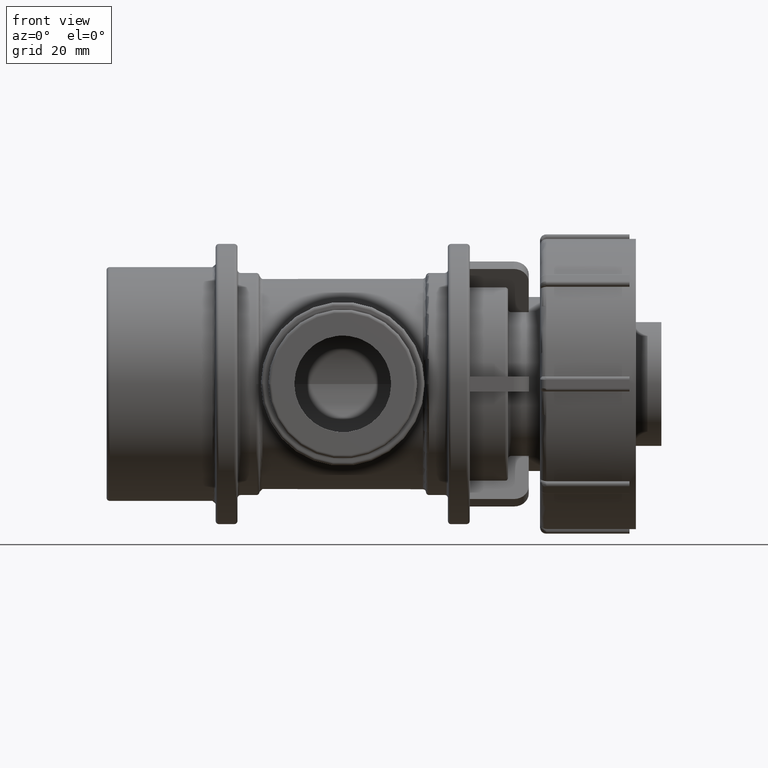
[diagram: clean part render]
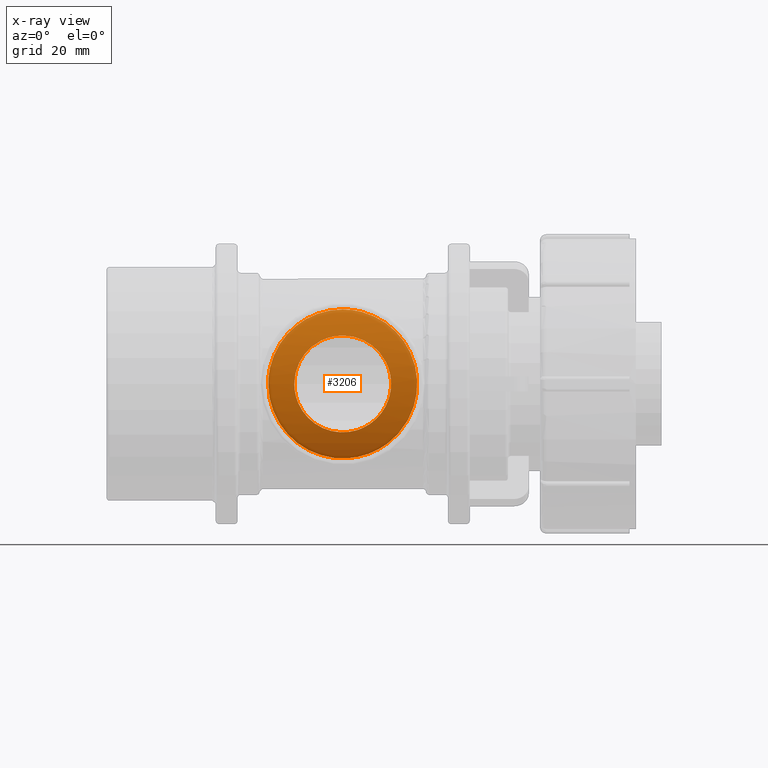
[diagram: x-ray — body ghosted, one internal face saturated and labeled with its STEP entity id]
A machine part, front view, then the same camera in x-ray: the body is ghosted and one INTERNAL B-rep face — a face not visible from any outside direction — is saturated and labeled: STEP entity #3206.
In plain terms, the highlighted cylindrical surface (partial cylindrical patch) has radius 33.75 mm, axis along (1, 0, 0).
Its self-contained STEP definition (entity closure, byte-faithful):
#787=FACE_BOUND('',#1261,.T.);
#999=FACE_OUTER_BOUND('',#1260,.T.);
#1260=EDGE_LOOP('',(#2914));
#1261=EDGE_LOOP('',(#2915));
#1332=B_SPLINE_CURVE_WITH_KNOTS('',3,(#6126,#6127,#6128,#6129,#6130,#6131,
#6132,#6133,#6134,#6135,#6136,#6137,#6138,#6139,#6140,#6141,#6142,#6143,
#6144,#6145,#6146,#6147,#6148,#6149,#6150,#6151,#6152,#6153,#6154,#6155,
#6156,#6157,#6158,#6159,#6160,#6161,#6162,#6163,#6164,#6165,#6166,#6167,
#6168,#6169,#6170,#6171,#6172,#6173,#6174,#6175,#6176,#6177,#6178,#6179,
#6180,#6181,#6182,#6183,#6184,#6185,#6186,#6187,#6188,#6189,#6190,#6191),
 .UNSPECIFIED.,.T.,.F.,(4,2,2,2,2,2,2,2,2,2,2,2,2,2,2,2,2,2,2,2,2,2,2,2,
2,2,2,2,2,2,2,2,4),(0.,0.475938500100274,0.951877000200548,1.42781550030082,
1.9037540004011,2.37245335410523,2.84115270780936,3.30985206151349,3.77855141521763,
4.24725076892176,4.71595012262589,5.18464947633002,5.65334883003416,6.12928733013443,
6.6052258302347,7.08116433033498,7.55710283043525,8.03304133053553,8.5089798306358,
8.98491833073608,9.46085683083635,9.92955618454048,10.3982555382446,10.8669548919487,
11.3356542456529,11.804353599357,12.2730529530611,12.7417523067653,13.2104516604694,
13.6863901605697,14.16232866067,14.6382671607702,15.1142056608705),
 .UNSPECIFIED.);
#1333=B_SPLINE_CURVE_WITH_KNOTS('',3,(#6193,#6194,#6195,#6196,#6197,#6198,
#6199,#6200,#6201,#6202,#6203,#6204,#6205,#6206,#6207,#6208,#6209,#6210,
#6211,#6212,#6213,#6214,#6215,#6216,#6217,#6218,#6219,#6220,#6221,#6222,
#6223,#6224,#6225,#6226,#6227,#6228,#6229,#6230,#6231,#6232,#6233,#6234,
#6235,#6236,#6237,#6238,#6239,#6240,#6241,#6242),.UNSPECIFIED.,.T.,.F.,
(4,2,2,2,2,2,2,2,2,2,2,2,2,2,2,2,2,2,2,2,2,2,2,2,4),(0.,0.297846823282371,
0.595693646564742,1.19138729312948,1.78596310865965,2.08325101642474,2.38053892418982,
2.6778268319549,2.97511473971999,3.56969055525015,4.16538420181489,4.46323102509727,
4.76107784837964,5.05892467166201,5.35677149494438,5.95246514150912,6.54704095703929,
6.84432886480437,7.14161677256945,7.43890468033454,7.73619258809962,8.33076840362978,
8.92646205019453,9.2243088734769,9.52215569675927),.UNSPECIFIED.);
#1617=VERTEX_POINT('',#6125);
#1618=VERTEX_POINT('',#6192);
#2053=EDGE_CURVE('',#1617,#1617,#1332,.T.);
#2054=EDGE_CURVE('',#1618,#1618,#1333,.T.);
#2914=ORIENTED_EDGE('',*,*,#2053,.F.);
#2915=ORIENTED_EDGE('',*,*,#2054,.F.);
#3000=CYLINDRICAL_SURFACE('',#3588,33.75);
#3206=ADVANCED_FACE('',(#999,#787),#3000,.F.);
#3588=AXIS2_PLACEMENT_3D('',#6124,#4516,#4517);
#4516=DIRECTION('center_axis',(1.,0.,0.));
#4517=DIRECTION('ref_axis',(0.,0.,-1.));
#6124=CARTESIAN_POINT('Origin',(-75.75,0.,0.));
#6125=CARTESIAN_POINT('',(-6.66133814775094E-15,-23.8281513708051,23.9015));
#6126=CARTESIAN_POINT('Ctrl Pts',(-6.66133814775094E-15,-23.8281513708051,
23.9015));
#6127=CARTESIAN_POINT('Ctrl Pts',(-1.58646166700092,-23.8281513708051,23.9015));
#6128=CARTESIAN_POINT('Ctrl Pts',(-3.18966811203021,-23.9915227784884,23.7416242770434));
#6129=CARTESIAN_POINT('Ctrl Pts',(-6.32382204970287,-24.6050788111022,23.1051505739813));
#6130=CARTESIAN_POINT('Ctrl Pts',(-7.85529753779996,-25.0529757857666,22.628949522809));
#6131=CARTESIAN_POINT('Ctrl Pts',(-10.7640113214621,-26.1114831031948,21.3988615357246));
#6132=CARTESIAN_POINT('Ctrl Pts',(-12.1443013353026,-26.7213641021603,20.6438917842701));
#6133=CARTESIAN_POINT('Ctrl Pts',(-14.6936291218159,-27.9723073984907,18.9143222524994));
#6134=CARTESIAN_POINT('Ctrl Pts',(-15.862633962588,-28.6127025323026,17.9391914984726));
#6135=CARTESIAN_POINT('Ctrl Pts',(-17.9233990126796,-29.8049236543074,15.8784264483809));
#6136=CARTESIAN_POINT('Ctrl Pts',(-18.8953624672475,-30.4034530534525,14.7181619812866));
#6137=CARTESIAN_POINT('Ctrl Pts',(-20.6297815738476,-31.5106826707044,12.1684480231502));
#6138=CARTESIAN_POINT('Ctrl Pts',(-21.3923254062906,-32.018821267961,10.7788146635617));
#6139=CARTESIAN_POINT('Ctrl Pts',(-22.632538771198,-32.8603884748086,7.84746094788918));
#6140=CARTESIAN_POINT('Ctrl Pts',(-23.1112390838057,-33.1942611964862,6.30252905700655));
#6141=CARTESIAN_POINT('Ctrl Pts',(-23.7458541253879,-33.6391913180671,3.16000892098551));
#6142=CARTESIAN_POINT('Ctrl Pts',(-23.9015,-33.75,1.56233117901377));
#6143=CARTESIAN_POINT('Ctrl Pts',(-23.9015,-33.75,-1.56233117901377));
#6144=CARTESIAN_POINT('Ctrl Pts',(-23.7458541253879,-33.6391913180671,-3.16000892098551));
#6145=CARTESIAN_POINT('Ctrl Pts',(-23.1112390838057,-33.1942611964862,-6.30252905700655));
#6146=CARTESIAN_POINT('Ctrl Pts',(-22.632538771198,-32.8603884748086,-7.84746094788918));
#6147=CARTESIAN_POINT('Ctrl Pts',(-21.3923254062906,-32.018821267961,-10.7788146635617));
#6148=CARTESIAN_POINT('Ctrl Pts',(-20.6297815738476,-31.5106826707044,-12.1684480231502));
#6149=CARTESIAN_POINT('Ctrl Pts',(-18.8953624672475,-30.4034530534525,-14.7181619812866));
#6150=CARTESIAN_POINT('Ctrl Pts',(-17.9233990126796,-29.8049236543074,-15.8784264483809));
#6151=CARTESIAN_POINT('Ctrl Pts',(-15.862633962588,-28.6127025323026,-17.9391914984726));
#6152=CARTESIAN_POINT('Ctrl Pts',(-14.6936291218159,-27.9723073984907,-18.9143222524994));
#6153=CARTESIAN_POINT('Ctrl Pts',(-12.1443013353026,-26.7213641021603,-20.6438917842701));
#6154=CARTESIAN_POINT('Ctrl Pts',(-10.764011321462,-26.1114831031948,-21.3988615357246));
#6155=CARTESIAN_POINT('Ctrl Pts',(-7.85529753779996,-25.0529757857666,-22.628949522809));
#6156=CARTESIAN_POINT('Ctrl Pts',(-6.32382204970287,-24.6050788111022,-23.1051505739813));
#6157=CARTESIAN_POINT('Ctrl Pts',(-3.18966811203021,-23.9915227784884,-23.7416242770434));
#6158=CARTESIAN_POINT('Ctrl Pts',(-1.58646166700092,-23.8281513708051,-23.9015));
#6159=CARTESIAN_POINT('Ctrl Pts',(1.58646166700091,-23.8281513708051,-23.9015));
#6160=CARTESIAN_POINT('Ctrl Pts',(3.18966811203019,-23.9915227784884,-23.7416242770434));
#6161=CARTESIAN_POINT('Ctrl Pts',(6.32382204970285,-24.6050788111022,-23.1051505739814));
#6162=CARTESIAN_POINT('Ctrl Pts',(7.85529753779994,-25.0529757857667,-22.628949522809));
#6163=CARTESIAN_POINT('Ctrl Pts',(10.764011321462,-26.1114831031948,-21.3988615357246));
#6164=CARTESIAN_POINT('Ctrl Pts',(12.1443013353026,-26.7213641021603,-20.6438917842701));
#6165=CARTESIAN_POINT('Ctrl Pts',(14.6936291218159,-27.9723073984907,-18.9143222524995));
#6166=CARTESIAN_POINT('Ctrl Pts',(15.862633962588,-28.6127025323026,-17.9391914984726));
#6167=CARTESIAN_POINT('Ctrl Pts',(17.9233990126796,-29.8049236543074,-15.8784264483809));
#6168=CARTESIAN_POINT('Ctrl Pts',(18.8953624672475,-30.4034530534525,-14.7181619812866));
#6169=CARTESIAN_POINT('Ctrl Pts',(20.6297815738476,-31.5106826707044,-12.1684480231502));
#6170=CARTESIAN_POINT('Ctrl Pts',(21.3923254062906,-32.018821267961,-10.7788146635617));
#6171=CARTESIAN_POINT('Ctrl Pts',(22.632538771198,-32.8603884748086,-7.84746094788918));
#6172=CARTESIAN_POINT('Ctrl Pts',(23.1112390838057,-33.1942611964862,-6.30252905700656));
#6173=CARTESIAN_POINT('Ctrl Pts',(23.7458541253879,-33.6391913180671,-3.16000892098552));
#6174=CARTESIAN_POINT('Ctrl Pts',(23.9015,-33.75,-1.56233117901378));
#6175=CARTESIAN_POINT('Ctrl Pts',(23.9015,-33.75,1.56233117901378));
#6176=CARTESIAN_POINT('Ctrl Pts',(23.7458541253879,-33.6391913180671,3.16000892098551));
#6177=CARTESIAN_POINT('Ctrl Pts',(23.1112390838057,-33.1942611964862,6.30252905700656));
#6178=CARTESIAN_POINT('Ctrl Pts',(22.632538771198,-32.8603884748086,7.84746094788918));
#6179=CARTESIAN_POINT('Ctrl Pts',(21.3923254062906,-32.018821267961,10.7788146635617));
#6180=CARTESIAN_POINT('Ctrl Pts',(20.6297815738477,-31.5106826707044,12.1684480231502));
#6181=CARTESIAN_POINT('Ctrl Pts',(18.8953624672475,-30.4034530534525,14.7181619812866));
#6182=CARTESIAN_POINT('Ctrl Pts',(17.9233990126797,-29.8049236543074,15.8784264483809));
#6183=CARTESIAN_POINT('Ctrl Pts',(15.862633962588,-28.6127025323026,17.9391914984726));
#6184=CARTESIAN_POINT('Ctrl Pts',(14.6936291218159,-27.9723073984907,18.9143222524994));
#6185=CARTESIAN_POINT('Ctrl Pts',(12.1443013353026,-26.7213641021603,20.6438917842701));
#6186=CARTESIAN_POINT('Ctrl Pts',(10.7640113214621,-26.1114831031948,21.3988615357246));
#6187=CARTESIAN_POINT('Ctrl Pts',(7.85529753779996,-25.0529757857667,22.628949522809));
#6188=CARTESIAN_POINT('Ctrl Pts',(6.32382204970287,-24.6050788111022,23.1051505739813));
#6189=CARTESIAN_POINT('Ctrl Pts',(3.1896681120302,-23.9915227784884,23.7416242770434));
#6190=CARTESIAN_POINT('Ctrl Pts',(1.58646166700091,-23.8281513708051,23.9015));
#6191=CARTESIAN_POINT('Ctrl Pts',(-8.88178419700125E-15,-23.8281513708051,
23.9015));
#6192=CARTESIAN_POINT('',(-8.60422844084496E-15,-29.9615750720715,15.535975));
#6193=CARTESIAN_POINT('Ctrl Pts',(-8.60422844084496E-15,-29.9615750720715,
15.535975));
#6194=CARTESIAN_POINT('Ctrl Pts',(0.992822744274562,-29.9615750720715,15.535975));
#6195=CARTESIAN_POINT('Ctrl Pts',(2.01364809435461,-30.0123489016254,15.4392955990789));
#6196=CARTESIAN_POINT('Ctrl Pts',(4.0335049289002,-30.2151529798586,15.0385326883145));
#6197=CARTESIAN_POINT('Ctrl Pts',(5.03259602221333,-30.3668860694912,14.7345993043153));
#6198=CARTESIAN_POINT('Ctrl Pts',(7.89475542570882,-30.9276894483553,13.539393087408));
#6199=CARTESIAN_POINT('Ctrl Pts',(9.62136532238343,-31.4424249343702,12.3498212273059));
#6200=CARTESIAN_POINT('Ctrl Pts',(12.3472612262848,-32.3808033595306,9.62392532340458));
#6201=CARTESIAN_POINT('Ctrl Pts',(13.5387395992768,-32.8705926631432,7.89640541234864));
#6202=CARTESIAN_POINT('Ctrl Pts',(14.7350749686837,-33.3869587517985,5.03141440189864));
#6203=CARTESIAN_POINT('Ctrl Pts',(15.0391142523387,-33.523709188,4.03137400186707));
#6204=CARTESIAN_POINT('Ctrl Pts',(15.4396292398893,-33.7052855096937,2.01116453234764));
#6205=CARTESIAN_POINT('Ctrl Pts',(15.535975,-33.75,0.99095969255028));
#6206=CARTESIAN_POINT('Ctrl Pts',(15.535975,-33.75,-0.990959692550276));
#6207=CARTESIAN_POINT('Ctrl Pts',(15.4396292398893,-33.7052855096937,-2.01116453234763));
#6208=CARTESIAN_POINT('Ctrl Pts',(15.0391142523387,-33.523709188,-4.03137400186706));
#6209=CARTESIAN_POINT('Ctrl Pts',(14.7350749686837,-33.3869587517985,-5.03141440189863));
#6210=CARTESIAN_POINT('Ctrl Pts',(13.5387395992768,-32.8705926631432,-7.89640541234864));
#6211=CARTESIAN_POINT('Ctrl Pts',(12.3472612262848,-32.3808033595306,-9.62392532340457));
#6212=CARTESIAN_POINT('Ctrl Pts',(9.62136532238343,-31.4424249343702,-12.3498212273059));
#6213=CARTESIAN_POINT('Ctrl Pts',(7.89475542570882,-30.9276894483553,-13.539393087408));
#6214=CARTESIAN_POINT('Ctrl Pts',(5.03259602221333,-30.3668860694912,-14.7345993043153));
#6215=CARTESIAN_POINT('Ctrl Pts',(4.0335049289002,-30.2151529798586,-15.0385326883145));
#6216=CARTESIAN_POINT('Ctrl Pts',(2.01364809435461,-30.0123489016254,-15.4392955990789));
#6217=CARTESIAN_POINT('Ctrl Pts',(0.992822744274564,-29.9615750720715,-15.535975));
#6218=CARTESIAN_POINT('Ctrl Pts',(-0.992822744274579,-29.9615750720715,
-15.535975));
#6219=CARTESIAN_POINT('Ctrl Pts',(-2.01364809435462,-30.0123489016254,-15.4392955990789));
#6220=CARTESIAN_POINT('Ctrl Pts',(-4.03350492890021,-30.2151529798586,-15.0385326883145));
#6221=CARTESIAN_POINT('Ctrl Pts',(-5.03259602221334,-30.3668860694912,-14.7345993043153));
#6222=CARTESIAN_POINT('Ctrl Pts',(-7.89475542570882,-30.9276894483553,-13.539393087408));
#6223=CARTESIAN_POINT('Ctrl Pts',(-9.62136532238343,-31.4424249343702,-12.3498212273059));
#6224=CARTESIAN_POINT('Ctrl Pts',(-12.3472612262848,-32.3808033595306,-9.62392532340457));
#6225=CARTESIAN_POINT('Ctrl Pts',(-13.5387395992768,-32.8705926631432,-7.89640541234863));
#6226=CARTESIAN_POINT('Ctrl Pts',(-14.7350749686836,-33.3869587517985,-5.03141440189864));
#6227=CARTESIAN_POINT('Ctrl Pts',(-15.0391142523387,-33.523709188,-4.03137400186706));
#6228=CARTESIAN_POINT('Ctrl Pts',(-15.4396292398892,-33.7052855096937,-2.01116453234764));
#6229=CARTESIAN_POINT('Ctrl Pts',(-15.535975,-33.75,-0.990959692550281));
#6230=CARTESIAN_POINT('Ctrl Pts',(-15.535975,-33.75,0.990959692550274));
#6231=CARTESIAN_POINT('Ctrl Pts',(-15.4396292398893,-33.7052855096937,2.01116453234763));
#6232=CARTESIAN_POINT('Ctrl Pts',(-15.0391142523387,-33.523709188,4.03137400186706));
#6233=CARTESIAN_POINT('Ctrl Pts',(-14.7350749686836,-33.3869587517985,5.03141440189863));
#6234=CARTESIAN_POINT('Ctrl Pts',(-13.5387395992768,-32.8705926631432,7.89640541234863));
#6235=CARTESIAN_POINT('Ctrl Pts',(-12.3472612262848,-32.3808033595306,9.62392532340456));
#6236=CARTESIAN_POINT('Ctrl Pts',(-9.62136532238343,-31.4424249343702,12.3498212273059));
#6237=CARTESIAN_POINT('Ctrl Pts',(-7.89475542570883,-30.9276894483553,13.539393087408));
#6238=CARTESIAN_POINT('Ctrl Pts',(-5.03259602221334,-30.3668860694913,14.7345993043153));
#6239=CARTESIAN_POINT('Ctrl Pts',(-4.03350492890022,-30.2151529798586,15.0385326883145));
#6240=CARTESIAN_POINT('Ctrl Pts',(-2.01364809435463,-30.0123489016254,15.4392955990789));
#6241=CARTESIAN_POINT('Ctrl Pts',(-0.992822744274582,-29.9615750720715,
15.535975));
#6242=CARTESIAN_POINT('Ctrl Pts',(-8.60422844084496E-15,-29.9615750720715,
15.535975));